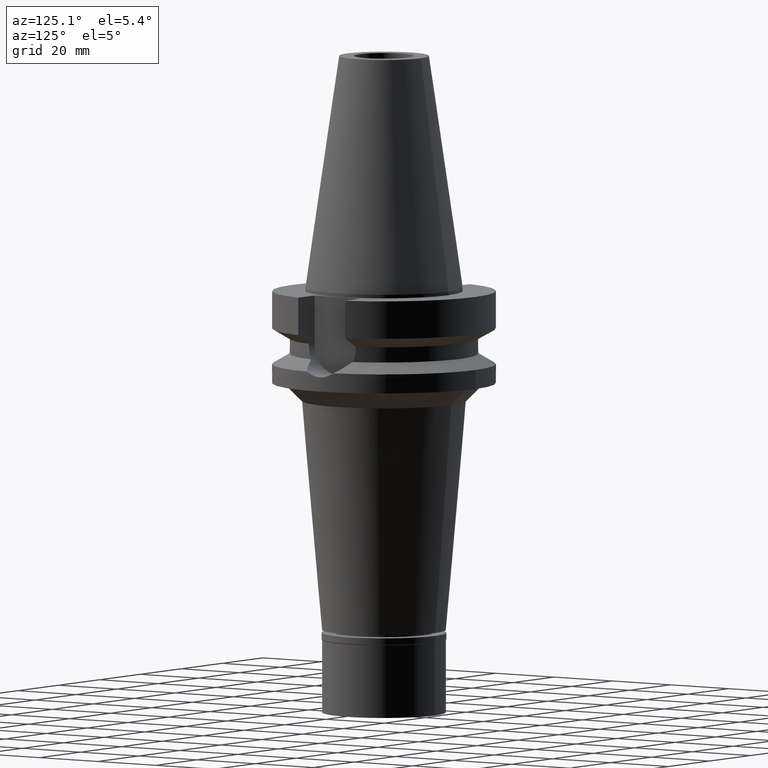
[diagram: clean part render]
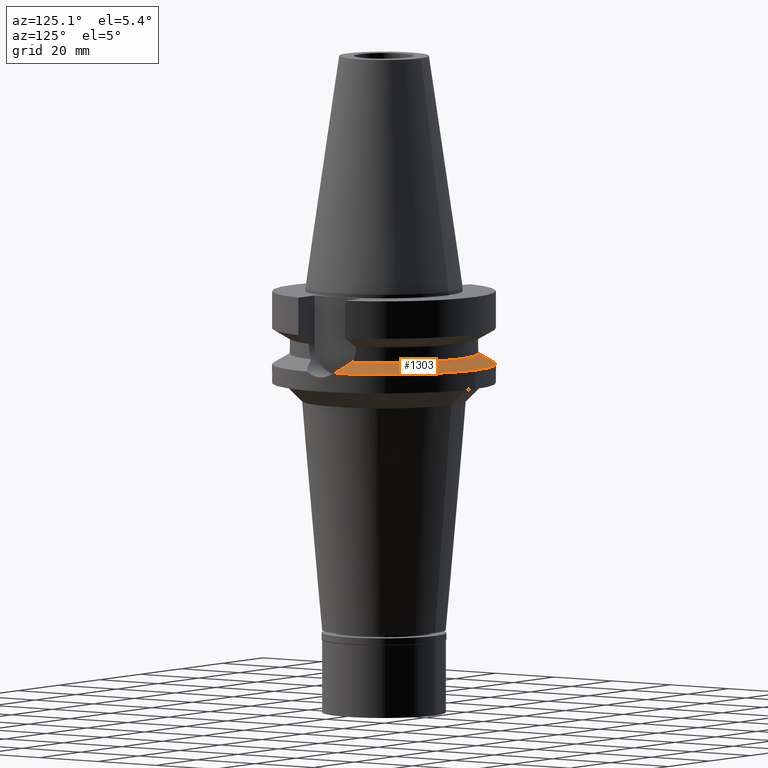
[diagram: same view with one face highlighted and labeled with its STEP entity id]
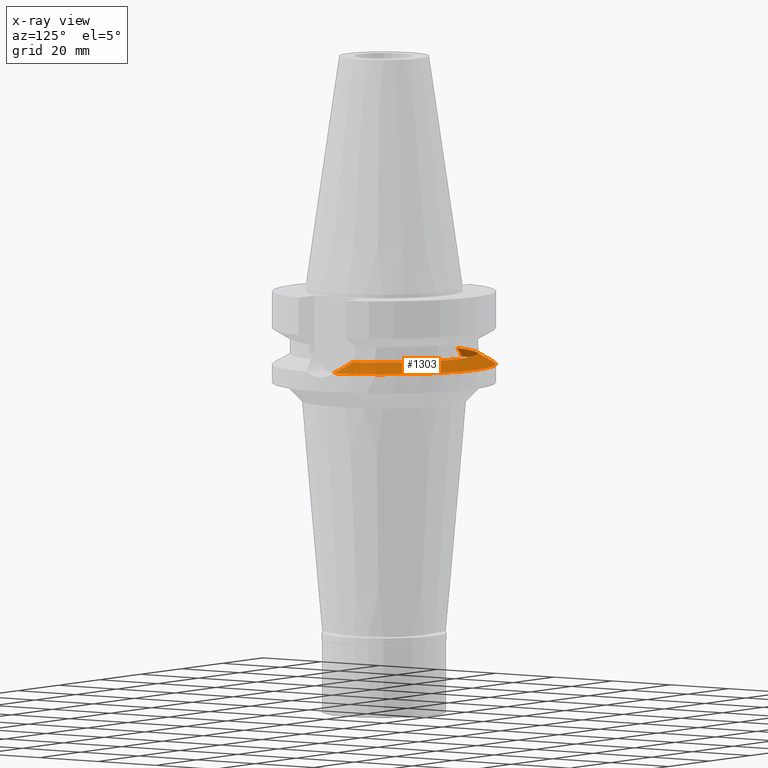
[diagram: x-ray of the same camera — body ghosted, the highlighted face saturated]
A machine part, auxiliary view. The second image highlights one B-rep face of the part: STEP entity #1303.
The next image is the same camera in x-ray: the body ghosted, the highlighted face saturated — about 5% of this face is hidden behind the body in this view.
In plain terms, the highlighted conical surface has half-angle 60 deg.
Its self-contained STEP definition (entity closure, byte-faithful):
#5 = CARTESIAN_POINT ( 'NONE',  ( -25.53175183775000079, 7.097862220092999941, -18.74774300138999905 ) ) ;
#185 = CARTESIAN_POINT ( 'NONE',  ( -28.71727056836842351, 5.944055760466837590, -20.37927816395421488 ) ) ;
#213 = CIRCLE ( 'NONE', #1140, 31.50000000000001421 ) ;
#215 = CARTESIAN_POINT ( 'NONE',  ( 0.0000000000000000000, 31.50000000000000000, -21.63449434733000132 ) ) ;
#292 = ORIENTED_EDGE ( 'NONE', *, *, #821, .F. ) ;
#358 = ORIENTED_EDGE ( 'NONE', *, *, #2170, .F. ) ;
#385 = CARTESIAN_POINT ( 'NONE',  ( 25.53175183775000079, 7.097862220092999941, -18.74774300138999905 ) ) ;
#417 = CARTESIAN_POINT ( 'NONE',  ( -31.17899877608999759, 4.485536235554000051, -21.63449434733000132 ) ) ;
#439 = ORIENTED_EDGE ( 'NONE', *, *, #1479, .F. ) ;
#526 = B_SPLINE_CURVE_WITH_KNOTS ( 'NONE', 3,
 ( #2330, #2081, #886, #1811, #1111, #1841, #655, #1891, #1925, #2845, #2600, #2153, #2821, #2166, #708, #678, #2874 ),
 .UNSPECIFIED., .F., .F.,
 ( 4, 2, 2, 1, 2, 2, 1, 1, 2, 4 ),
 ( 0.0000000000000000000, 0.5000000000000458522, 0.6250000000000572875, 0.6562500000000592859, 0.6640625000000601741, 0.6679687500000601741, 0.6718750000000601741, 0.6875000000000571765, 0.7500000000000455191, 1.000000000000000000 ),
 .UNSPECIFIED. ) ;
#572 = CARTESIAN_POINT ( 'NONE',  ( 0.0000000000000000000, 0.0000000000000000000, -21.63449434733000132 ) ) ;
#591 = VERTEX_POINT ( 'NONE', #215 ) ;
#621 = CIRCLE ( 'NONE', #1282, 26.49999999999998224 ) ;
#623 = ORIENTED_EDGE ( 'NONE', *, *, #2437, .F. ) ;
#655 = CARTESIAN_POINT ( 'NONE',  ( 27.64717905813427734, 6.401159283193318394, -19.83162578508260765 ) ) ;
#678 = CARTESIAN_POINT ( 'NONE',  ( 26.07155616730036485, 6.949479259821948141, -19.02506608707875557 ) ) ;
#700 = CARTESIAN_POINT ( 'NONE',  ( -31.17899877608999759, 4.485536235554000051, -21.63449434733000132 ) ) ;
#708 = CARTESIAN_POINT ( 'NONE',  ( 26.58024512517162208, 6.788965446458179898, -19.28598296414717339 ) ) ;
#711 = VERTEX_POINT ( 'NONE', #2201 ) ;
#821 = EDGE_CURVE ( 'NONE', #1346, #591, #213, .T. ) ;
#827 = DIRECTION ( 'NONE',  ( -0.9898094849552905306, 0.1423979757318985240, 0.0000000000000000000 ) ) ;
#886 = CARTESIAN_POINT ( 'NONE',  ( 29.61027454892095889, 5.536571605696885001, -20.83515447403536314 ) ) ;
#936 = CARTESIAN_POINT ( 'NONE',  ( -29.74558163192387639, 5.454762939198906757, -20.90442005953475046 ) ) ;
#966 = CARTESIAN_POINT ( 'NONE',  ( -28.23017790460097487, 6.162130149383220790, -20.13051023944592544 ) ) ;
#980 = CARTESIAN_POINT ( 'NONE',  ( -28.35421483486275207, 6.108283744994750464, -20.19386886032582495 ) ) ;
#986 = DIRECTION ( 'NONE',  ( 0.9634623335000935818, 0.2678438573619981722, 0.0000000000000000000 ) ) ;
#1077 = CARTESIAN_POINT ( 'NONE',  ( 0.0000000000000000000, 0.0000000000000000000, -21.63449434733000132 ) ) ;
#1111 = CARTESIAN_POINT ( 'NONE',  ( 28.07538881955741772, 6.230508825567135922, -20.05046820577640787 ) ) ;
#1140 = AXIS2_PLACEMENT_3D ( 'NONE', #1077, #1551, #827 ) ;
#1164 = CARTESIAN_POINT ( 'NONE',  ( -26.16781820743977605, 6.923018474504132769, -19.07452046257299827 ) ) ;
#1282 = AXIS2_PLACEMENT_3D ( 'NONE', #1433, #1449, #986 ) ;
#1303 = ADVANCED_FACE ( 'NONE', ( #1842 ), #2305, .T. ) ;
#1319 = VERTEX_POINT ( 'NONE', #385 ) ;
#1346 = VERTEX_POINT ( 'NONE', #417 ) ;
#1368 = EDGE_LOOP ( 'NONE', ( #623, #439, #2736, #358, #292 ) ) ;
#1410 = DIRECTION ( 'NONE',  ( 0.0000000000000000000, -1.000000000000000000, 0.0000000000000000000 ) ) ;
#1433 = CARTESIAN_POINT ( 'NONE',  ( 0.0000000000000000000, 0.0000000000000000000, -18.74774300138999905 ) ) ;
#1449 = DIRECTION ( 'NONE',  ( 0.0000000000000000000, 0.0000000000000000000, 1.000000000000000000 ) ) ;
#1479 = EDGE_CURVE ( 'NONE', #1319, #711, #621, .T. ) ;
#1499 = CARTESIAN_POINT ( 'NONE',  ( 0.0000000000000000000, 0.0000000000000000000, -20.19111867435999841 ) ) ;
#1511 = DIRECTION ( 'NONE',  ( 0.0000000000000000000, 1.000000000000000000, 0.0000000000000000000 ) ) ;
#1551 = DIRECTION ( 'NONE',  ( 0.0000000000000000000, 0.0000000000000000000, -1.000000000000000000 ) ) ;
#1653 = DIRECTION ( 'NONE',  ( 0.0000000000000000000, 0.0000000000000000000, -1.000000000000000000 ) ) ;
#1680 = CARTESIAN_POINT ( 'NONE',  ( -26.76083268523949599, 6.731177754907893274, -19.37880222442553801 ) ) ;
#1811 = CARTESIAN_POINT ( 'NONE',  ( 28.33927388614023002, 6.117476830400331522, -20.18539518565998492 ) ) ;
#1841 = CARTESIAN_POINT ( 'NONE',  ( 27.73342631879557274, 6.367256371616091926, -19.87569955002227573 ) ) ;
#1842 = FACE_OUTER_BOUND ( 'NONE', #1368, .T. ) ;
#1891 = CARTESIAN_POINT ( 'NONE',  ( 27.55998600313444413, 6.434695218340957368, -19.78707783208989213 ) ) ;
#1914 = AXIS2_PLACEMENT_3D ( 'NONE', #572, #2524, #1511 ) ;
#1925 = CARTESIAN_POINT ( 'NONE',  ( 27.53377133897418005, 6.444733799142579045, -19.77368504204494570 ) ) ;
#2011 = CIRCLE ( 'NONE', #1914, 31.50000000000000000 ) ;
#2081 = CARTESIAN_POINT ( 'NONE',  ( 30.47211613471883496, 5.021825931852736069, -21.27462466377788175 ) ) ;
#2153 = CARTESIAN_POINT ( 'NONE',  ( 27.47498382427937713, 6.467135999177518357, -19.74365080681829809 ) ) ;
#2159 = CARTESIAN_POINT ( 'NONE',  ( -27.84999488408627855, 6.322029240523784566, -19.93623942041779529 ) ) ;
#2166 = CARTESIAN_POINT ( 'NONE',  ( 27.17721210791182784, 6.577619945056629724, -19.59143669724734593 ) ) ;
#2170 = EDGE_CURVE ( 'NONE', #591, #2815, #2011, .T. ) ;
#2201 = CARTESIAN_POINT ( 'NONE',  ( -25.53175183775000079, 7.097862220092999941, -18.74774300138999905 ) ) ;
#2305 = CONICAL_SURFACE ( 'NONE', #2955, 29.00000000000000000, 1.047197551196400456 ) ;
#2330 = CARTESIAN_POINT ( 'NONE',  ( 31.17899877608999759, 4.485536235554000051, -21.63449434733000132 ) ) ;
#2362 = CARTESIAN_POINT ( 'NONE',  ( -28.59690720890003135, 5.999652880215861295, -20.31781671171617631 ) ) ;
#2394 = CARTESIAN_POINT ( 'NONE',  ( -27.58577656410397339, 6.426444363896172796, -19.80112859194209918 ) ) ;
#2437 = EDGE_CURVE ( 'NONE', #711, #1346, #2980, .T. ) ;
#2524 = DIRECTION ( 'NONE',  ( 0.0000000000000000000, 0.0000000000000000000, -1.000000000000000000 ) ) ;
#2600 = CARTESIAN_POINT ( 'NONE',  ( 27.51073697281142572, 6.453524085700802715, -19.76191724927096871 ) ) ;
#2736 = ORIENTED_EDGE ( 'NONE', *, *, #2943, .F. ) ;
#2815 = VERTEX_POINT ( 'NONE', #3041 ) ;
#2821 = CARTESIAN_POINT ( 'NONE',  ( 27.32402296518444373, 6.524112734926521107, -19.66651051475948719 ) ) ;
#2845 = CARTESIAN_POINT ( 'NONE',  ( 27.52502303917166770, 6.448075663967404836, -19.76921580449591787 ) ) ;
#2874 = CARTESIAN_POINT ( 'NONE',  ( 25.53175183775000079, 7.097862220092999941, -18.74774300138999905 ) ) ;
#2943 = EDGE_CURVE ( 'NONE', #2815, #1319, #526, .T. ) ;
#2955 = AXIS2_PLACEMENT_3D ( 'NONE', #1499, #1653, #1410 ) ;
#2980 = B_SPLINE_CURVE_WITH_KNOTS ( 'NONE', 3,
 ( #5, #1164, #1680, #2394, #2159, #966, #980, #2362, #185, #936, #3094, #700 ),
 .UNSPECIFIED., .F., .F.,
 ( 4, 2, 2, 2, 2, 4 ),
 ( 0.0000000000000000000, 0.2499999999999986677, 0.3749999999999983347, 0.4374999999999981681, 0.4999999999999980016, 1.000000000000000000 ),
 .UNSPECIFIED. ) ;
#3041 = CARTESIAN_POINT ( 'NONE',  ( 31.17899877608999759, 4.485536235554000051, -21.63449434733000132 ) ) ;
#3094 = CARTESIAN_POINT ( 'NONE',  ( -30.52807210621790546, 4.979373890727007534, -21.30311151092718447 ) ) ;